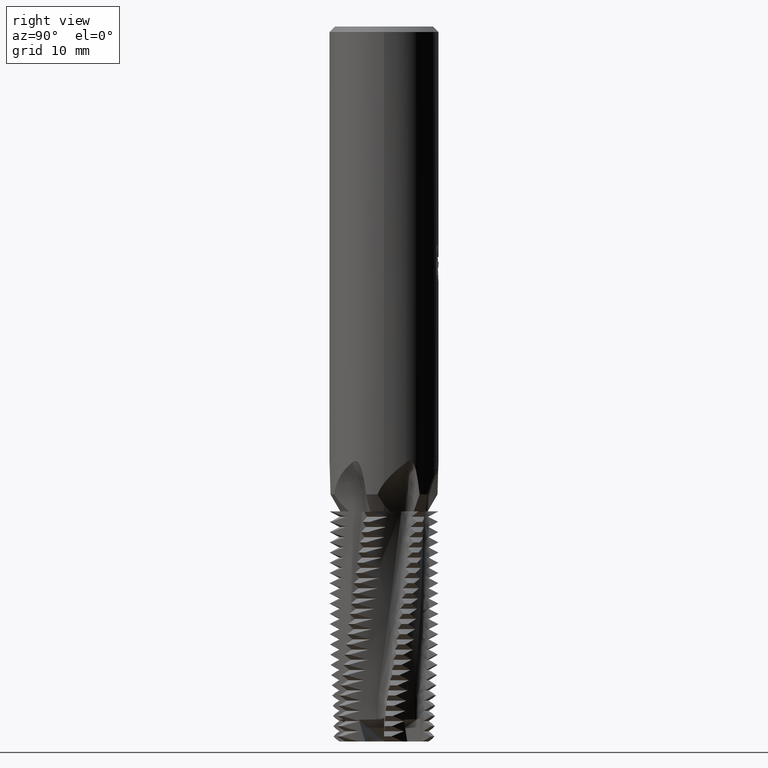
[diagram: clean part render]
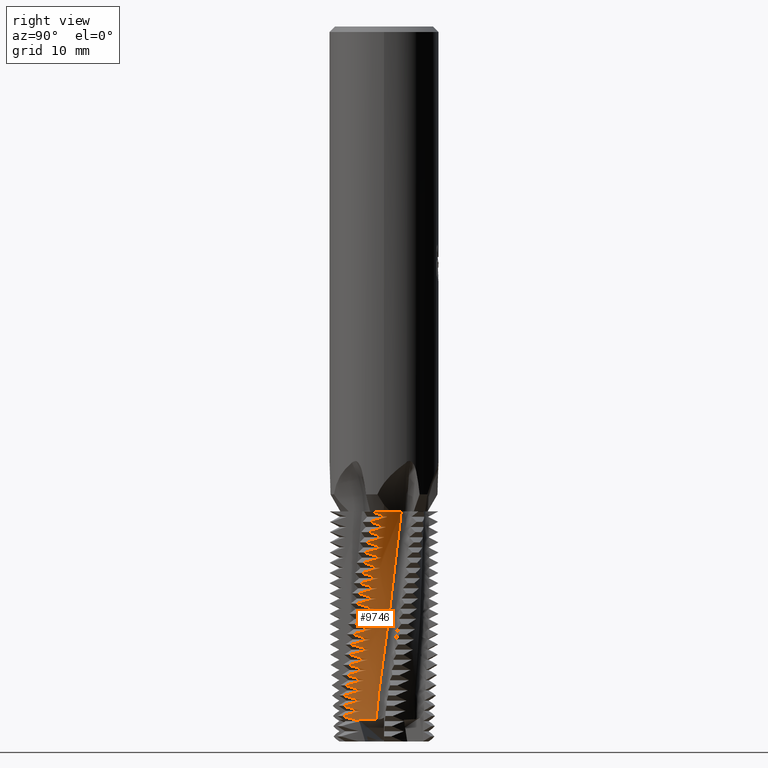
[diagram: same view with one face highlighted and labeled with its STEP entity id]
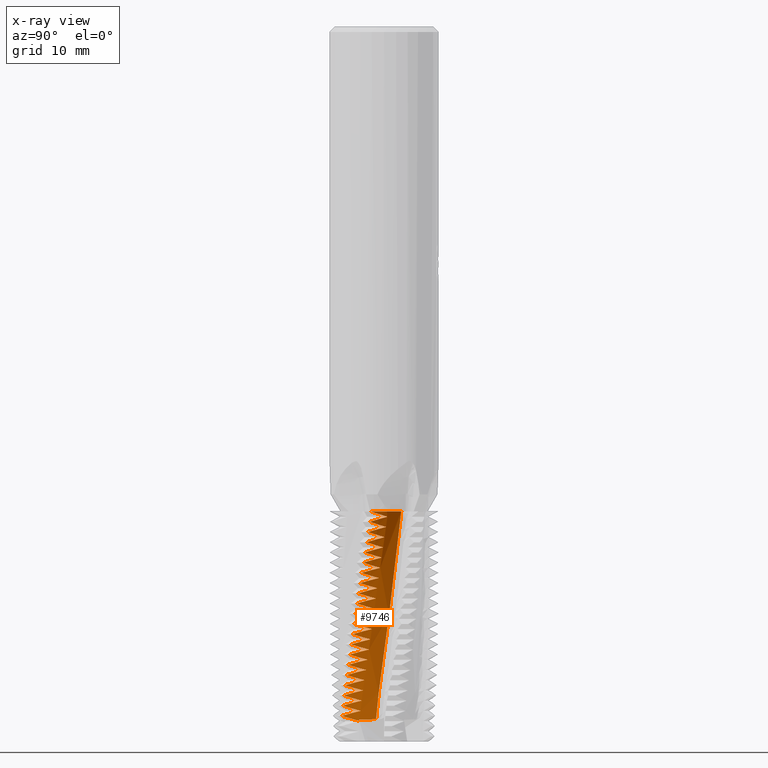
[diagram: x-ray of the same camera — body ghosted, the highlighted face saturated]
A machine part, right view. The second image highlights one B-rep face of the part: STEP entity #9746.
The next image is the same camera in x-ray: the body ghosted, the highlighted face saturated — about 0% of this face is hidden behind the body in this view.
In plain terms, the highlighted face is a freeform B-spline surface patch.
Its self-contained STEP definition (entity closure, byte-faithful):
#3534=EDGE_CURVE('',#5872,#10356,#10535,.T.);
#3674=EDGE_CURVE('',#8068,#5136,#10690,.T.);
#3710=VERTEX_POINT('',#10728);
#3774=EDGE_CURVE('',#4008,#7316,#10799,.T.);
#3800=VERTEX_POINT('',#10829);
#3906=EDGE_CURVE('',#4088,#4254,#10944,.T.);
#4008=VERTEX_POINT('',#11051);
#4016=VERTEX_POINT('',#11059);
#4038=VERTEX_POINT('',#11081);
#4042=VERTEX_POINT('',#11085);
#4056=VERTEX_POINT('',#11100);
#4066=EDGE_CURVE('',#8182,#4016,#11110,.T.);
#4088=VERTEX_POINT('',#11135);
#4132=EDGE_CURVE('',#7342,#7328,#11182,.T.);
#4192=VERTEX_POINT('',#11249);
#4254=VERTEX_POINT('',#11314);
#4400=EDGE_CURVE('',#5144,#7710,#11476,.T.);
#4564=VERTEX_POINT('',#11656);
#4574=EDGE_CURVE('',#9040,#3800,#11666,.T.);
#4618=EDGE_CURVE('',#5412,#4564,#11716,.T.);
#4736=EDGE_CURVE('',#4192,#5144,#11844,.T.);
#4908=VERTEX_POINT('',#12028);
#5010=EDGE_CURVE('',#6060,#8068,#12142,.T.);
#5132=VERTEX_POINT('',#12275);
#5136=VERTEX_POINT('',#12279);
#5144=VERTEX_POINT('',#12287);
#5228=VERTEX_POINT('',#12381);
#5300=EDGE_CURVE('',#3710,#7150,#12457,.T.);
#5354=EDGE_CURVE('',#4908,#8468,#12513,.T.);
#5412=VERTEX_POINT('',#12580);
#5416=EDGE_CURVE('',#5606,#5962,#12584,.T.);
#5480=VERTEX_POINT('',#12649);
#5518=VERTEX_POINT('',#12691);
#5606=VERTEX_POINT('',#12786);
#5642=EDGE_CURVE('',#9894,#7152,#12823,.T.);
#5872=VERTEX_POINT('',#13069);
#5918=EDGE_CURVE('',#6716,#5480,#13117,.T.);
#5962=VERTEX_POINT('',#13168);
#5964=VERTEX_POINT('',#13170);
#6060=VERTEX_POINT('',#13272);
#6096=EDGE_CURVE('',#9208,#7342,#13310,.T.);
#6116=EDGE_CURVE('',#5136,#5412,#13330,.T.);
#6126=EDGE_CURVE('',#7328,#5132,#13340,.T.);
#6128=EDGE_CURVE('',#7150,#5518,#13342,.T.);
#6188=VERTEX_POINT('',#13406);
#6444=EDGE_CURVE('',#4042,#7210,#13684,.T.);
#6468=EDGE_CURVE('',#4038,#6786,#13709,.T.);
#6696=VERTEX_POINT('',#13956);
#6716=VERTEX_POINT('',#13976);
#6756=EDGE_CURVE('',#9616,#4056,#14018,.T.);
#6786=VERTEX_POINT('',#14048);
#6860=EDGE_CURVE('',#3800,#9208,#14128,.T.);
#7150=VERTEX_POINT('',#14440);
#7152=VERTEX_POINT('',#14442);
#7210=VERTEX_POINT('',#14507);
#7260=EDGE_CURVE('',#6188,#9616,#14562,.T.);
#7316=VERTEX_POINT('',#14623);
#7328=VERTEX_POINT('',#14635);
#7342=VERTEX_POINT('',#14652);
#7548=VERTEX_POINT('',#14882);
#7710=VERTEX_POINT('',#15058);
#7714=EDGE_CURVE('',#5962,#9894,#15062,.T.);
#7884=EDGE_CURVE('',#8468,#6060,#15246,.T.);
#7980=EDGE_CURVE('',#6696,#4038,#15350,.T.);
#8068=VERTEX_POINT('',#15447);
#8124=EDGE_CURVE('',#7210,#6188,#15507,.T.);
#8182=VERTEX_POINT('',#15571);
#8316=EDGE_CURVE('',#5964,#4192,#15720,.T.);
#8468=VERTEX_POINT('',#15885);
#8716=EDGE_CURVE('',#7152,#8182,#16155,.T.);
#8750=EDGE_CURVE('',#4056,#4908,#16191,.T.);
#8788=EDGE_CURVE('',#5518,#4042,#16231,.T.);
#8796=EDGE_CURVE('',#6786,#9074,#16239,.T.);
#8826=EDGE_CURVE('',#4564,#9040,#16271,.T.);
#8828=EDGE_CURVE('',#7316,#6696,#16273,.T.);
#8866=EDGE_CURVE('',#5228,#5964,#16313,.T.);
#9040=VERTEX_POINT('',#16506);
#9074=VERTEX_POINT('',#16543);
#9138=EDGE_CURVE('',#5480,#5228,#16613,.T.);
#9208=VERTEX_POINT('',#16693);
#9296=EDGE_CURVE('',#4254,#9682,#16789,.T.);
#9392=EDGE_CURVE('',#9682,#4008,#16894,.T.);
#9508=EDGE_CURVE('',#3710,#5872,#17020,.T.);
#9560=EDGE_CURVE('',#9074,#6716,#17075,.T.);
#9616=VERTEX_POINT('',#17138);
#9682=VERTEX_POINT('',#17213);
#9746=ADVANCED_FACE('',(#17281),#17282,.F.);
#9894=VERTEX_POINT('',#17442);
#9934=EDGE_CURVE('',#7548,#10356,#17486,.T.);
#9946=EDGE_CURVE('',#4016,#4088,#17499,.T.);
#10022=EDGE_CURVE('',#5132,#5606,#17584,.T.);
#10114=EDGE_CURVE('',#7710,#7548,#17687,.T.);
#10356=VERTEX_POINT('',#17947);
#10535=B_SPLINE_CURVE_WITH_KNOTS('',3,(#18152,#18153,#18154,#18155),.UNSPECIFIED.,.F.,.F.,(4,4),(0.0,5.84952639063961),.UNSPECIFIED.);
#10690=B_SPLINE_CURVE_WITH_KNOTS('',3,(#18812,#18813,#18814,#18815,#18816,#18817),.UNSPECIFIED.,.F.,.F.,(4,2,4),(-5.61948608228634,-2.84789399336241,-0.0),.UNSPECIFIED.);
#10728=CARTESIAN_POINT('',(7.78159654628699,-1.85654388379958,-71.2499999996928));
#10799=B_SPLINE_CURVE_WITH_KNOTS('',3,(#19342,#19343,#19344,#19345,#19346,#19347),.UNSPECIFIED.,.F.,.F.,(4,2,4),(-5.27704749302958,-2.63030225929207,-0.0),.UNSPECIFIED.);
#10829=CARTESIAN_POINT('',(7.05299975821246,-3.77560517144667,-83.25));
#10944=B_SPLINE_CURVE_WITH_KNOTS('',3,(#19960,#19961,#19962,#19963,#19964,#19965),.UNSPECIFIED.,.F.,.F.,(4,2,4),(-5.62560304157055,-2.85306415786461,-0.0),.UNSPECIFIED.);
#11051=CARTESIAN_POINT('',(6.01403009292047,-5.27555134952251,-93.7499999999997));
#11059=CARTESIAN_POINT('',(6.36781898531546,-4.84261100753059,-90.7499999999999));
#11081=CARTESIAN_POINT('',(5.90548343813525,-2.85468067830477,-96.0));
#11085=CARTESIAN_POINT('',(6.55271526931434,0.293017085629637,-73.5));
#11100=CARTESIAN_POINT('',(6.55808428167925,-0.124366263784888,-76.5));
#11110=B_SPLINE_CURVE_WITH_KNOTS('',3,(#20355,#20356,#20357,#20358,#20359,#20360),.UNSPECIFIED.,.F.,.F.,(4,2,4),(-5.61785217917354,-2.84832789257784,-0.0),.UNSPECIFIED.);
#11135=CARTESIAN_POINT('',(6.17952547169326,-2.19940932021996,-91.5));
#11182=B_SPLINE_CURVE_WITH_KNOTS('',3,(#20628,#20629,#20630,#20631,#20632,#20633),.UNSPECIFIED.,.F.,.F.,(4,2,4),(-5.30324812299088,-2.64132732141284,-0.0),.UNSPECIFIED.);
#11249=CARTESIAN_POINT('',(5.06491480472757,-6.19246623090118,-101.25));
#11314=CARTESIAN_POINT('',(6.19868784117941,-5.05729859189835,-92.2499999999995));
#11476=B_SPLINE_CURVE_WITH_KNOTS('',3,(#21593,#21594,#21595,#21596),.UNSPECIFIED.,.F.,.F.,(4,4),(-5.14316140575248,-0.0),.UNSPECIFIED.);
#11656=CARTESIAN_POINT('',(7.17159652067711,-3.545166194216,-81.75));
#11666=B_SPLINE_CURVE_WITH_KNOTS('',3,(#22140,#22141,#22142,#22143,#22144,#22145),.UNSPECIFIED.,.F.,.F.,(4,2,4),(-5.61461145037038,-2.84535065110203,-0.0),.UNSPECIFIED.);
#11716=B_SPLINE_CURVE_WITH_KNOTS('',3,(#22468,#22469,#22470,#22471,#22472,#22473),.UNSPECIFIED.,.F.,.F.,(4,2,4),(-5.61695205445458,-2.84675506709832,-0.0),.UNSPECIFIED.);
#11844=B_SPLINE_CURVE_WITH_KNOTS('',3,(#23199,#23200,#23201,#23202,#23203,#23204),.UNSPECIFIED.,.F.,.F.,(4,2,4),(-5.37535980910993,-2.6727734751696,-0.0),.UNSPECIFIED.);
#12028=CARTESIAN_POINT('',(7.48606470456067,-2.8211407691095,-77.2499999999999));
#12142=B_SPLINE_CURVE_WITH_KNOTS('',3,(#24531,#24532,#24533,#24534,#24535,#24536),.UNSPECIFIED.,.F.,.F.,(4,2,4),(-5.29626750706646,-2.63815799034791,-0.0),.UNSPECIFIED.);
#12275=CARTESIAN_POINT('',(6.79908847463921,-4.21573195471773,-86.25));
#12279=CARTESIAN_POINT('',(7.28414115185122,-3.30776173263851,-80.25));
#12287=CARTESIAN_POINT('',(5.51468985826279,-3.62980241862912,-101.977718601492));
#12381=CARTESIAN_POINT('',(5.20613502683306,-6.07422077985143,-99.7500000000006));
#12457=B_SPLINE_CURVE_WITH_KNOTS('',3,(#25733,#25734,#25735,#25736,#25737,#25738),.UNSPECIFIED.,.F.,.F.,(4,2,4),(-5.30683520117697,-2.64230729378122,-0.0),.UNSPECIFIED.);
#12513=B_SPLINE_CURVE_WITH_KNOTS('',3,(#25908,#25909,#25910,#25911,#25912,#25913),.UNSPECIFIED.,.F.,.F.,(4,2,4),(-5.29830236350147,-2.63894712528896,-0.0),.UNSPECIFIED.);
#12580=CARTESIAN_POINT('',(6.51416893129162,-0.767814787413742,-81.0));
#12584=B_SPLINE_CURVE_WITH_KNOTS('',3,(#26151,#26152,#26153,#26154,#26155,#26156),.UNSPECIFIED.,.F.,.F.,(4,2,4),(-5.60850588534897,-2.84167496213667,-0.0),.UNSPECIFIED.);
#12649=CARTESIAN_POINT('',(5.68888865307234,-3.26503940345611,-99.0));
#12691=CARTESIAN_POINT('',(7.72048475587828,-2.09621447715902,-72.75));
#12786=CARTESIAN_POINT('',(6.36268045078757,-1.59381112254307,-87.0));
#12823=B_SPLINE_CURVE_WITH_KNOTS('',3,(#26997,#26998,#26999,#27000,#27001,#27002),.UNSPECIFIED.,.F.,.F.,(4,2,4),(-5.61030863613462,-2.84373548891365,-0.0),.UNSPECIFIED.);
#13069=CARTESIAN_POINT('',(7.78349412871241,-1.84857219180088,-71.2));
#13117=B_SPLINE_CURVE_WITH_KNOTS('',3,(#28182,#28183,#28184,#28185,#28186,#28187),.UNSPECIFIED.,.F.,.F.,(4,2,4),(-5.30899181118011,-2.64685509677272,-0.0),.UNSPECIFIED.);
#13168=CARTESIAN_POINT('',(6.66440974709608,-4.42556693799606,-87.7500000000235));
#13170=CARTESIAN_POINT('',(5.5986060428108,-3.41753519229556,-100.5));
#13272=CARTESIAN_POINT('',(7.38977118692756,-3.06451983272077,-78.7499999999475));
#13310=B_SPLINE_CURVE_WITH_KNOTS('',3,(#28836,#28837,#28838,#28839,#28840,#28841),.UNSPECIFIED.,.F.,.F.,(4,2,4),(-5.61241595696507,-2.844031296609,-0.0),.UNSPECIFIED.);
#13330=B_SPLINE_CURVE_WITH_KNOTS('',3,(#28885,#28886,#28887,#28888,#28889,#28890),.UNSPECIFIED.,.F.,.F.,(4,2,4),(-5.29705058856522,-2.63898646141656,-0.0),.UNSPECIFIED.);
#13340=B_SPLINE_CURVE_WITH_KNOTS('',3,(#28925,#28926,#28927,#28928,#28929,#28930),.UNSPECIFIED.,.F.,.F.,(4,2,4),(-5.61037750573799,-2.84280411111093,-0.0),.UNSPECIFIED.);
#13342=B_SPLINE_CURVE_WITH_KNOTS('',3,(#28933,#28934,#28935,#28936,#28937,#28938),.UNSPECIFIED.,.F.,.F.,(4,2,4),(-5.60724618761019,-2.84136709371767,-0.0),.UNSPECIFIED.);
#13406=CARTESIAN_POINT('',(6.55870385713329,0.0856745446506779,-75.0));
#13684=B_SPLINE_CURVE_WITH_KNOTS('',3,(#30190,#30191,#30192,#30193,#30194,#30195),.UNSPECIFIED.,.F.,.F.,(4,2,4),(-5.60948994211881,-2.84273433803022,-0.0),.UNSPECIFIED.);
#13709=B_SPLINE_CURVE_WITH_KNOTS('',3,(#30247,#30248,#30249,#30250,#30251,#30252),.UNSPECIFIED.,.F.,.F.,(4,2,4),(-5.66544624311254,-2.87685789666679,-0.0),.UNSPECIFIED.);
#13956=CARTESIAN_POINT('',(5.8126465006306,-5.4966481294246,-95.25));
#13976=CARTESIAN_POINT('',(5.38347766139524,-5.91761508289089,-98.2500000000001));
#14018=B_SPLINE_CURVE_WITH_KNOTS('',3,(#31160,#31161,#31162,#31163,#31164,#31165),.UNSPECIFIED.,.F.,.F.,(4,2,4),(-5.30069671252445,-2.63988023627405,-0.0),.UNSPECIFIED.);
#14048=CARTESIAN_POINT('',(5.59350709123376,-5.71949984125595,-96.7499999974435));
#14128=B_SPLINE_CURVE_WITH_KNOTS('',3,(#31462,#31463,#31464,#31465,#31466,#31467),.UNSPECIFIED.,.F.,.F.,(4,2,4),(-5.30126699619818,-2.6405834900182,-0.0),.UNSPECIFIED.);
#14440=CARTESIAN_POINT('',(6.54035524855413,0.497684273296514,-72.0));
#14442=CARTESIAN_POINT('',(6.52260897372686,-4.63201599477539,-89.2500000000005));
#14507=CARTESIAN_POINT('',(7.65107332124143,-2.33689474152937,-74.25));
#14562=B_SPLINE_CURVE_WITH_KNOTS('',3,(#32888,#32889,#32890,#32891,#32892,#32893),.UNSPECIFIED.,.F.,.F.,(4,2,4),(-5.61188368255623,-2.84419458822894,-0.0),.UNSPECIFIED.);
#14623=CARTESIAN_POINT('',(6.00859726975296,-2.63072143395942,-94.5));
#14635=CARTESIAN_POINT('',(6.40969151662455,-1.39276382595456,-85.5));
#14652=CARTESIAN_POINT('',(6.92871876024351,-3.99910694298736,-84.75));
#14882=CARTESIAN_POINT('',(5.64737127033433,-1.16118817024268,-101.739488676859));
#15058=CARTESIAN_POINT('',(5.51503559103188,-3.67669039402125,-101.815892716927));
#15062=B_SPLINE_CURVE_WITH_KNOTS('',3,(#34496,#34497,#34498,#34499,#34500,#34501),.UNSPECIFIED.,.F.,.F.,(4,2,4),(-5.30680460086605,-2.64143394071663,-0.0),.UNSPECIFIED.);
#15246=B_SPLINE_CURVE_WITH_KNOTS('',3,(#35071,#35072,#35073,#35074,#35075,#35076),.UNSPECIFIED.,.F.,.F.,(4,2,4),(-5.61705255058171,-2.84735436463524,-0.0),.UNSPECIFIED.);
#15350=B_SPLINE_CURVE_WITH_KNOTS('',3,(#35312,#35313,#35314,#35315,#35316,#35317),.UNSPECIFIED.,.F.,.F.,(4,2,4),(-5.26902370925931,-2.62727811978164,-0.0),.UNSPECIFIED.);
#15447=CARTESIAN_POINT('',(6.53595255866233,-0.552503904141486,-79.5));
#15507=B_SPLINE_CURVE_WITH_KNOTS('',3,(#35847,#35848,#35849,#35850,#35851,#35852),.UNSPECIFIED.,.F.,.F.,(4,2,4),(-5.30292478213152,-2.64075479455387,-0.0),.UNSPECIFIED.);
#15571=CARTESIAN_POINT('',(6.24931257139595,-1.99249311119732,-90.0));
#15720=B_SPLINE_CURVE_WITH_KNOTS('',3,(#36537,#36538,#36539,#36540,#36541,#36542),.UNSPECIFIED.,.F.,.F.,(4,2,4),(-5.56306504511426,-2.81067559896437,-0.0),.UNSPECIFIED.);
#15885=CARTESIAN_POINT('',(6.55059523392565,-0.337103091719432,-78.0));
#16155=B_SPLINE_CURVE_WITH_KNOTS('',3,(#37907,#37908,#37909,#37910,#37911,#37912),.UNSPECIFIED.,.F.,.F.,(4,2,4),(-5.29931763818393,-2.63884773753027,-0.0),.UNSPECIFIED.);
#16191=B_SPLINE_CURVE_WITH_KNOTS('',3,(#38063,#38064,#38065,#38066,#38067,#38068),.UNSPECIFIED.,.F.,.F.,(4,2,4),(-5.61441071364534,-2.84573818350245,-0.0),.UNSPECIFIED.);
#16231=B_SPLINE_CURVE_WITH_KNOTS('',3,(#38237,#38238,#38239,#38240,#38241,#38242),.UNSPECIFIED.,.F.,.F.,(4,2,4),(-5.30497434147747,-2.64156535154724,-0.0),.UNSPECIFIED.);
#16239=B_SPLINE_CURVE_WITH_KNOTS('',3,(#38265,#38266,#38267,#38268,#38269,#38270),.UNSPECIFIED.,.F.,.F.,(4,2,4),(-5.27796931618831,-2.63493817027634,-0.0),.UNSPECIFIED.);
#16271=B_SPLINE_CURVE_WITH_KNOTS('',3,(#38398,#38399,#38400,#38401,#38402,#38403),.UNSPECIFIED.,.F.,.F.,(4,2,4),(-5.29919659605634,-2.6398015560549,-0.0),.UNSPECIFIED.);
#16273=B_SPLINE_CURVE_WITH_KNOTS('',3,(#38406,#38407,#38408,#38409,#38410,#38411),.UNSPECIFIED.,.F.,.F.,(4,2,4),(-5.64159973949423,-2.8628773522847,-0.0),.UNSPECIFIED.);
#16313=B_SPLINE_CURVE_WITH_KNOTS('',3,(#38575,#38576,#38577,#38578,#38579,#38580),.UNSPECIFIED.,.F.,.F.,(4,2,4),(-5.34181252018965,-2.6596299999413,-0.0),.UNSPECIFIED.);
#16506=CARTESIAN_POINT('',(6.48568613198787,-0.97969985736267,-82.5));
#16543=CARTESIAN_POINT('',(5.79299529611567,-3.07654707624603,-97.5));
#16613=B_SPLINE_CURVE_WITH_KNOTS('',3,(#39610,#39611,#39612,#39613,#39614,#39615),.UNSPECIFIED.,.F.,.F.,(4,2,4),(-5.59463924490874,-2.82999400911539,-0.0),.UNSPECIFIED.);
#16693=CARTESIAN_POINT('',(6.4507744516577,-1.18804267053694,-84.0));
#16789=B_SPLINE_CURVE_WITH_KNOTS('',3,(#40342,#40343,#40344,#40345,#40346,#40347),.UNSPECIFIED.,.F.,.F.,(4,2,4),(-5.28481161291936,-2.63325789004465,-0.0),.UNSPECIFIED.);
#16894=B_SPLINE_CURVE_WITH_KNOTS('',3,(#40697,#40698,#40699,#40700,#40701,#40702),.UNSPECIFIED.,.F.,.F.,(4,2,4),(-5.63354068564321,-2.85792670136701,-0.0),.UNSPECIFIED.);
#17020=B_SPLINE_CURVE_WITH_KNOTS('',3,(#41060,#41061,#41062,#41063,#41064,#41065,#41066,#41067,#41068,#41069,#41070,#41071,#41072,#41073,#41074,#41075,#41076,#41077),.UNSPECIFIED.,.F.,.F.,(4,2,2,2,2,2,2,2,4),(0.0,4.2798831973062,7.59079704039042,9.30267594768724,14.1018099922006,16.3917593590355,22.0423815114549,25.6513206040202,28.8942214101256),.UNSPECIFIED.);
#17075=B_SPLINE_CURVE_WITH_KNOTS('',3,(#41295,#41296,#41297,#41298,#41299,#41300),.UNSPECIFIED.,.F.,.F.,(4,2,4),(-5.6284269070532,-2.85046168358722,-0.0),.UNSPECIFIED.);
#17138=CARTESIAN_POINT('',(7.57304625323706,-2.5785597646422,-75.7499999975008));
#17213=CARTESIAN_POINT('',(6.09960777651561,-2.41220260049743,-93.0));
#17281=FACE_OUTER_BOUND('',#42170,.T.);
#17282=B_SPLINE_SURFACE_WITH_KNOTS('',3,3,((#42171,#42172,#42173,#42174,#42175,#42176,#42177,#42178,#42179,#42180,#42181,#42182),(#42183,#42184,#42185,#42186,#42187,#42188,#42189,#42190,#42191,#42192,#42193,#42194),(#42195,#42196,#42197,#42198,#42199,#42200,#42201,#42202,#42203,#42204,#42205,#42206),(#42207,#42208,#42209,#42210,#42211,#42212,#42213,#42214,#42215,#42216,#42217,#42218),(#42219,#42220,#42221,#42222,#42223,#42224,#42225,#42226,#42227,#42228,#42229,#42230)),.UNSPECIFIED.,.F.,.F.,.F.,(4,1,4),(4,1,2,1,2,2,4),(1.2067197059184E-017,0.174488720353414,0.348977440706829),(0.0,4.26563632946831,8.53127265893663,12.7969089884049,17.0625453178733,25.5938179768099,34.1250906357465),.UNSPECIFIED.);
#17442=CARTESIAN_POINT('',(6.3098713102307,-1.79149670987803,-88.5));
#17486=B_SPLINE_CURVE_WITH_KNOTS('',3,(#42776,#42777,#42778,#42779,#42780,#42781,#42782,#42783,#42784,#42785,#42786,#42787),.UNSPECIFIED.,.F.,.F.,(4,1,2,1,2,2,4),(0.0,4.26563632946831,8.53127265893663,12.7969089884049,17.0625453178733,25.5938179768099,34.1250906357465),.UNSPECIFIED.);
#17499=B_SPLINE_CURVE_WITH_KNOTS('',3,(#42803,#42804,#42805,#42806,#42807,#42808),.UNSPECIFIED.,.F.,.F.,(4,2,4),(-5.29224975740849,-2.63611369960134,-0.0),.UNSPECIFIED.);
#17584=B_SPLINE_CURVE_WITH_KNOTS('',3,(#43202,#43203,#43204,#43205,#43206,#43207),.UNSPECIFIED.,.F.,.F.,(4,2,4),(-5.30512788778155,-2.64202871567936,-0.0),.UNSPECIFIED.);
#17687=B_SPLINE_CURVE_WITH_KNOTS('',3,(#43573,#43574,#43575,#43576),.UNSPECIFIED.,.F.,.F.,(4,4),(-4.13881996194998,-0.0),.UNSPECIFIED.);
#17947=CARTESIAN_POINT('',(5.18117762216553,2.53432594578458,-71.2));
#18152=CARTESIAN_POINT('',(8.05,-2.52129602057349,-71.2));
#18153=CARTESIAN_POINT('',(7.36763389184741,-0.694752610960941,-71.2));
#18154=CARTESIAN_POINT('',(6.39926107567012,1.01177651056337,-71.2));
#18155=CARTESIAN_POINT('',(5.18117762216554,2.53432594578456,-71.2));
#18812=CARTESIAN_POINT('',(5.52902763676944,1.63551356542936,-79.0869762529438));
#18813=CARTESIAN_POINT('',(5.97209528882039,0.833472144255569,-79.1897185336519));
#18814=CARTESIAN_POINT('',(6.34374289744231,0.00551185076619776,-79.3612097163068));
#18815=CARTESIAN_POINT('',(6.94550824419921,-1.7130306267286,-79.7845258679109));
#18816=CARTESIAN_POINT('',(7.17107809469258,-2.60334600094228,-80.0377741154513));
#18817=CARTESIAN_POINT('',(7.31685568679483,-3.50159480681092,-80.3080788786349));
#19342=CARTESIAN_POINT('',(6.00382578694489,-5.45525281698631,-93.6916591621101));
#19343=CARTESIAN_POINT('',(6.05434063498195,-4.62053526225124,-93.9644098173608));
#19344=CARTESIAN_POINT('',(6.06224781506668,-3.76782472823776,-94.2194168782498));
#19345=CARTESIAN_POINT('',(5.98473383917194,-2.06956373888757,-94.6409593639347));
#19346=CARTESIAN_POINT('',(5.89977445643431,-1.21050408379875,-94.8106705740025));
#19347=CARTESIAN_POINT('',(5.75924600703932,-0.350895869056905,-94.9109032055087));
#19960=CARTESIAN_POINT('',(5.76195219636021,0.175252105825474,-91.0863331409869));
#19961=CARTESIAN_POINT('',(5.98679254836959,-0.713668159643031,-91.1892555209926));
#19962=CARTESIAN_POINT('',(6.13577771659719,-1.60997116519234,-91.3610646011977));
#19963=CARTESIAN_POINT('',(6.27990024196448,-3.4265933133116,-91.7845965640161));
#19964=CARTESIAN_POINT('',(6.27052870272346,-4.34663542493282,-92.0380299856928));
#19965=CARTESIAN_POINT('',(6.18043544773295,-5.25400279253511,-92.3082323953031));
#20355=CARTESIAN_POINT('',(5.7525994751367,0.365458806036509,-89.5861143469587));
#20356=CARTESIAN_POINT('',(6.00652588502725,-0.514610268467108,-89.6889876726578));
#20357=CARTESIAN_POINT('',(6.18531466726624,-1.40452296589533,-89.8607762988268));
#20358=CARTESIAN_POINT('',(6.39125770619668,-3.21248304968148,-90.2843195275027));
#20359=CARTESIAN_POINT('',(6.4140594725188,-4.13072238558271,-90.5378093532052));
#20360=CARTESIAN_POINT('',(6.35666033101813,-5.03905703578184,-90.8081328836194));
#20628=CARTESIAN_POINT('',(6.95296795987429,-4.17770089244218,-84.6919402180555));
#20629=CARTESIAN_POINT('',(6.8428986084716,-3.34281233738838,-84.9648958053115));
#20630=CARTESIAN_POINT('',(6.68542392160513,-2.50001326021894,-85.2198165082177));
#20631=CARTESIAN_POINT('',(6.27492721617387,-0.840495409703461,-85.6420217139358));
#20632=CARTESIAN_POINT('',(6.02018161747748,-0.0119412483832101,-85.8122353091627));
#20633=CARTESIAN_POINT('',(5.7092422551514,0.805574096003232,-85.9130532918414));
#21593=CARTESIAN_POINT('',(5.53101652268534,-2.7646369366159,-105.003018357393));
#21594=CARTESIAN_POINT('',(5.51739857741211,-3.1821161525822,-103.53324095797));
#21595=CARTESIAN_POINT('',(5.50205218864104,-3.71053921238186,-101.676149057978));
#21596=CARTESIAN_POINT('',(5.53328866454405,-4.20034433943892,-100.03351748955));
#22140=CARTESIAN_POINT('',(5.62538942215674,1.26798318180751,-82.0873254652164));
#22141=CARTESIAN_POINT('',(6.01443670414871,0.438814048796261,-82.189982336015));
#22142=CARTESIAN_POINT('',(6.3307180301392,-0.411714165968051,-82.3614583909564));
#22143=CARTESIAN_POINT('',(6.81838555156588,-2.16389268554294,-82.7845270600764));
#22144=CARTESIAN_POINT('',(6.98557976011035,-3.0660405208175,-83.0377350356602));
#22145=CARTESIAN_POINT('',(7.07313719447269,-3.97092001174661,-83.3080767023999));
#22468=CARTESIAN_POINT('',(5.58066674489656,1.45141879932291,-80.5872203098981));
#22469=CARTESIAN_POINT('',(5.99679611118208,0.63518039275941,-80.6899173931912));
#22470=CARTESIAN_POINT('',(6.34076884513741,-0.204827097705169,-80.8614268052148));
#22471=CARTESIAN_POINT('',(6.8852339091449,-1.94103183231868,-81.2845426710039));
#22472=CARTESIAN_POINT('',(7.08148935518352,-2.83777436088182,-81.537755885653));
#22473=CARTESIAN_POINT('',(7.19798995059651,-3.73988039468144,-81.8080859817098));
#23199=CARTESIAN_POINT('',(5.02084036646797,-6.3724219921729,-101.191309675402));
#23200=CARTESIAN_POINT('',(5.22847841246527,-5.54023240679404,-101.464694362688));
#23201=CARTESIAN_POINT('',(5.38855185251318,-4.6848502650448,-101.719257368452));
#23202=CARTESIAN_POINT('',(5.59609418335197,-2.96114193949902,-102.142699341797));
#23203=CARTESIAN_POINT('',(5.64584774676114,-2.08583285487982,-102.313720780748));
#23204=CARTESIAN_POINT('',(5.63438323740129,-1.20082554156593,-102.415588687168));
#24531=CARTESIAN_POINT('',(7.43718435054521,-3.23804502161404,-78.6919498949269));
#24532=CARTESIAN_POINT('',(7.21876248218535,-2.42642003203466,-78.9648610959137));
#24533=CARTESIAN_POINT('',(6.95269684366328,-1.61269392189615,-79.2198774837167));
#24534=CARTESIAN_POINT('',(6.33079364941993,-0.0233566732697618,-79.6419980078802));
#24535=CARTESIAN_POINT('',(5.97144542341789,0.764468883399913,-79.8121653034478));
#24536=CARTESIAN_POINT('',(5.55828603988091,1.53419359589924,-79.9128773786948));
#25733=CARTESIAN_POINT('',(7.85578683317979,-2.0214531931952,-71.1918532094486));
#25734=CARTESIAN_POINT('',(7.51290075263947,-1.25118704744373,-71.4646410399177));
#25735=CARTESIAN_POINT('',(7.12165452096379,-0.487291153495896,-71.7194886759436));
#25736=CARTESIAN_POINT('',(6.25451404820311,0.987395435776081,-72.1415272693503));
#25737=CARTESIAN_POINT('',(5.77362002999878,1.7091217555639,-72.311693078468));
#25738=CARTESIAN_POINT('',(5.24197912913438,2.40407621725525,-72.4124425328916));
#25908=CARTESIAN_POINT('',(7.5390530685443,-2.99309792072673,-77.1919720452039));
#25909=CARTESIAN_POINT('',(7.29446448615733,-2.18834496427132,-77.4648942237642));
#25910=CARTESIAN_POINT('',(7.00193759882635,-1.38323683429349,-77.7199188849076));
#25911=CARTESIAN_POINT('',(6.32791397130414,0.185721429895343,-78.1421276832562));
#25912=CARTESIAN_POINT('',(5.94260935206262,0.961415520264502,-78.312342445787));
#25913=CARTESIAN_POINT('',(5.50401657145342,1.7172358133666,-78.4131119550995));
#26151=CARTESIAN_POINT('',(5.71972668135021,0.725063358194422,-86.5867929225059));
#26152=CARTESIAN_POINT('',(6.02779056570048,-0.136660419926274,-86.6894740516863));
#26153=CARTESIAN_POINT('',(6.26174103802719,-1.0126665347453,-86.861008884312));
#26154=CARTESIAN_POINT('',(6.58155301232881,-2.80092231910784,-87.2842189756283));
#26155=CARTESIAN_POINT('',(6.66333680449108,-3.71355123404859,-87.5375385382373));
#26156=CARTESIAN_POINT('',(6.66625822450643,-4.62133225625135,-87.808020067641));
#26997=CARTESIAN_POINT('',(5.73867828595618,0.546947365753593,-88.086368064751));
#26998=CARTESIAN_POINT('',(6.01995169554283,-0.32381442990547,-88.1891215118845));
#26999=CARTESIAN_POINT('',(6.2268451924417,-1.20671316607656,-88.360807676934));
#27000=CARTESIAN_POINT('',(6.49120504016719,-3.00446695917378,-88.7842093557814));
#27001=CARTESIAN_POINT('',(6.54448924803968,-3.91993924459257,-89.0376816261759));
#27002=CARTESIAN_POINT('',(6.51816022918851,-4.82809146545199,-89.3080575927148));
#28182=CARTESIAN_POINT('',(5.35191281223882,-6.09604946337046,-98.1916886032393));
#28183=CARTESIAN_POINT('',(5.50174797647331,-5.26702264063689,-98.4645419644363));
#28184=CARTESIAN_POINT('',(5.61082243030793,-4.41665780044421,-98.7183430370187));
#28185=CARTESIAN_POINT('',(5.72957758621924,-2.70781731544021,-99.138962801309));
#28186=CARTESIAN_POINT('',(5.74083633891571,-1.83984464494672,-99.3080649977511));
#28187=CARTESIAN_POINT('',(5.69413621225051,-0.964497835189499,-99.4081346682965));
#28836=CARTESIAN_POINT('',(5.66331466847592,1.08568312988663,-83.5872827378905));
#28837=CARTESIAN_POINT('',(6.02530645261397,0.244648041395083,-83.6899235406365));
#28838=CARTESIAN_POINT('',(6.3140060429063,-0.615360920215197,-83.8613929738209));
#28839=CARTESIAN_POINT('',(6.74527761438407,-2.38148439729607,-84.284462355563));
#28840=CARTESIAN_POINT('',(6.88369940545596,-3.28805363091121,-84.5376868467768));
#28841=CARTESIAN_POINT('',(6.94267637573699,-4.19477566192709,-84.8080581747919));
#28885=CARTESIAN_POINT('',(7.32579873037035,-3.48283953284314,-80.1919225679871));
#28886=CARTESIAN_POINT('',(7.13433403022037,-2.6643091661861,-80.4648910330238));
#28887=CARTESIAN_POINT('',(6.89561917180719,-1.84208924617919,-80.7198167291104));
#28888=CARTESIAN_POINT('',(6.32682778897476,-0.232262561876798,-81.1418981168874));
#28889=CARTESIAN_POINT('',(5.99376841051642,0.567149863290277,-81.3119969808045));
#28890=CARTESIAN_POINT('',(5.60613174414225,1.3503494655335,-81.4127030023034));
#28925=CARTESIAN_POINT('',(5.69468178625048,0.904670647731593,-85.0871016733927));
#28926=CARTESIAN_POINT('',(6.02967207071506,0.0527965412862902,-85.1897506355736));
#28927=CARTESIAN_POINT('',(6.2909224508949,-0.815692300145524,-85.3612398677318));
#28928=CARTESIAN_POINT('',(6.66623449593262,-2.59381493179081,-85.7843568894679));
#28929=CARTESIAN_POINT('',(6.77618417654364,-3.50386439978082,-86.0376188980959));
#28930=CARTESIAN_POINT('',(6.80694897064445,-4.41154046632177,-86.3080371718874));
#28933=CARTESIAN_POINT('',(5.20089605402477,2.49295862903087,-71.587838854219));
#28934=CARTESIAN_POINT('',(5.76462472244079,1.77240756247838,-71.6903355861191));
#28935=CARTESIAN_POINT('',(6.26268632124468,1.01496196749537,-71.8617015314454));
#28936=CARTESIAN_POINT('',(7.12982904885592,-0.580893989872172,-72.2845794797096));
#28937=CARTESIAN_POINT('',(7.49521863967739,-1.42114038031487,-72.5377828560162));
#28938=CARTESIAN_POINT('',(7.78402965091913,-2.2817060392571,-72.808071072386));
#30190=CARTESIAN_POINT('',(5.27474000324493,2.33037404011628,-73.0873587656819));
#30191=CARTESIAN_POINT('',(5.81614427084699,1.59257663893433,-73.1899470536911));
#30192=CARTESIAN_POINT('',(6.29067057359031,0.819868404513202,-73.3614085281633));
#30193=CARTESIAN_POINT('',(7.10804805026017,-0.802857604143706,-73.7844463074733));
#30194=CARTESIAN_POINT('',(7.44708790321543,-1.65454384011045,-74.0377112714177));
#30195=CARTESIAN_POINT('',(7.70871505282518,-2.52424598242317,-74.3080327427584));
#30247=CARTESIAN_POINT('',(5.75388153507121,-0.450658684721751,-95.5899178485407));
#30248=CARTESIAN_POINT('',(5.88014299811207,-1.36186808940534,-95.6924832544194));
#30249=CARTESIAN_POINT('',(5.92881469683404,-2.27201609510796,-95.8637893272448));
#30250=CARTESIAN_POINT('',(5.86589183910699,-4.10252511587864,-96.2864108792436));
#30251=CARTESIAN_POINT('',(5.74961212642187,-5.01640858719707,-96.5378720375173));
#30252=CARTESIAN_POINT('',(5.55182478649651,-5.91488823075098,-96.8084356143907));
#31160=CARTESIAN_POINT('',(7.63148419464287,-2.74885064021481,-75.6919792804249));
#31161=CARTESIAN_POINT('',(7.36138090751299,-1.95170049373248,-75.9648932598082));
#31162=CARTESIAN_POINT('',(7.04312231965802,-1.1559181696267,-76.2199035428167));
#31163=CARTESIAN_POINT('',(6.3185592416718,0.391294985479012,-76.6421392336477));
#31164=CARTESIAN_POINT('',(5.90812653710554,1.15435299341704,-76.8123840425137));
#31165=CARTESIAN_POINT('',(5.44496466612176,1.89573669556387,-76.9131859654402));
#31462=CARTESIAN_POINT('',(7.08301038753239,-3.95328658673918,-83.1919221592716));
#31463=CARTESIAN_POINT('',(6.9460408042119,-3.12286579602879,-83.4648653496522));
#31464=CARTESIAN_POINT('',(6.76166989047587,-2.28593358979257,-83.7197673245576));
#31465=CARTESIAN_POINT('',(6.29865331496616,-0.641007159101347,-84.1418895287989));
#31466=CARTESIAN_POINT('',(6.01787507512194,0.178818719471645,-84.3120410267643));
#31467=CARTESIAN_POINT('',(5.68137537740835,0.985886152691136,-84.4128004613009));
#32888=CARTESIAN_POINT('',(5.34467307159995,2.16346511768898,-74.5870241181005));
#32889=CARTESIAN_POINT('',(5.8628877592537,1.40885599705406,-74.6896865669385));
#32890=CARTESIAN_POINT('',(6.31304910161557,0.621387616739465,-74.8612222150835));
#32891=CARTESIAN_POINT('',(7.07905054423839,-1.02708729126562,-75.2843794607035));
#32892=CARTESIAN_POINT('',(7.39095823089807,-1.88957801855892,-75.5376854580798));
#32893=CARTESIAN_POINT('',(7.62466184289385,-2.76771725501394,-75.8080205965767));
#34496=CARTESIAN_POINT('',(6.67731925243042,-4.60543883622501,-87.691949489105));
#34497=CARTESIAN_POINT('',(6.62028434941127,-3.7647843302881,-87.9648543237165));
#34498=CARTESIAN_POINT('',(6.5160026249775,-2.91309933436545,-88.2198800290393));
#34499=CARTESIAN_POINT('',(6.2094596777713,-1.2303735611571,-88.6424240395673));
#34500=CARTESIAN_POINT('',(6.00649624988781,-0.387391601805426,-88.8128726547238));
#34501=CARTESIAN_POINT('',(5.74687987508534,0.447861991792251,-88.9138293087993));
#35071=CARTESIAN_POINT('',(5.4720514308691,1.81614641184346,-77.5868265313555));
#35072=CARTESIAN_POINT('',(5.94115033139398,1.02933988744121,-77.6895733770662));
#35073=CARTESIAN_POINT('',(6.33996549539637,0.213996403648973,-77.8611815926286));
#35074=CARTESIAN_POINT('',(6.998145855339,-1.48229723112806,-78.2844368119247));
#35075=CARTESIAN_POINT('',(7.25333894601227,-2.36431084820318,-78.5377550061382));
#35076=CARTESIAN_POINT('',(7.42889484764154,-3.25702846366425,-78.8080522371523));
#35312=CARTESIAN_POINT('',(5.7959522884136,-5.67584950346709,-95.1915749970635));
#35313=CARTESIAN_POINT('',(5.8763802865624,-4.8453707662717,-95.4641407017908));
#35314=CARTESIAN_POINT('',(5.91588352096487,-3.99502686359197,-95.7189486280123));
#35315=CARTESIAN_POINT('',(5.90303600937185,-2.29772052135168,-96.1398594422593));
#35316=CARTESIAN_POINT('',(5.8516058569511,-1.43705562752439,-96.3091366638811));
#35317=CARTESIAN_POINT('',(5.74509372817295,-0.573548655943848,-96.4089632951409));
#35847=CARTESIAN_POINT('',(7.71485035595616,-2.50544424624386,-74.1919652889335));
#35848=CARTESIAN_POINT('',(7.41987072692368,-1.71659450560637,-74.4648531479396));
#35849=CARTESIAN_POINT('',(7.07659449961349,-0.930809522336033,-74.7198279423461));
#35850=CARTESIAN_POINT('',(6.30302596725955,0.593402143505306,-75.1420416871472));
#35851=CARTESIAN_POINT('',(5.86830080769636,1.34323117192563,-75.3122867824344));
#35852=CARTESIAN_POINT('',(5.38145767610966,2.06963630706539,-75.4130946242723));
#36537=CARTESIAN_POINT('',(5.68042812724204,-1.03179913581282,-100.090893034622));
#36538=CARTESIAN_POINT('',(5.71337497231851,-1.94195006383416,-100.192442990781));
#36539=CARTESIAN_POINT('',(5.67327982215212,-2.84290775569699,-100.362723766076));
#36540=CARTESIAN_POINT('',(5.45008426856989,-4.63085492964951,-100.784308329357));
#36541=CARTESIAN_POINT('',(5.26398309775188,-5.51753554313041,-101.036962416517));
#36542=CARTESIAN_POINT('',(5.01161271766227,-6.37811016706134,-101.30804704736));
#37907=CARTESIAN_POINT('',(6.53008340021391,-4.81200086525885,-89.1919275964426));
#37908=CARTESIAN_POINT('',(6.498448496589,-3.9711017838388,-89.4648671151919));
#37909=CARTESIAN_POINT('',(6.42002682125386,-3.11774050109301,-89.7200508751447));
#37910=CARTESIAN_POINT('',(6.1664707463675,-1.42891635263373,-90.1425204315829));
#37911=CARTESIAN_POINT('',(5.99067137163547,-0.580755603558061,-90.3129244330106));
#37912=CARTESIAN_POINT('',(5.758374550389,0.261611027341081,-90.4138243811145));
#38063=CARTESIAN_POINT('',(5.4105155982706,1.99209635344225,-76.0868442400999));
#38064=CARTESIAN_POINT('',(5.9046398336869,1.22113891071221,-76.1895604956106));
#38065=CARTESIAN_POINT('',(6.32957412799893,0.419445592844082,-76.3611459934872));
#38066=CARTESIAN_POINT('',(7.04252796981233,-1.25358160255076,-76.7843772937936));
#38067=CARTESIAN_POINT('',(7.3264942646019,-2.1261981438454,-77.0377016730705));
#38068=CARTESIAN_POINT('',(7.53151297580676,-3.01202725325117,-77.3080292237508));
#38237=CARTESIAN_POINT('',(7.78950686058633,-2.26296568069739,-72.6919247322011));
#38238=CARTESIAN_POINT('',(7.47027261240869,-1.48308528011727,-72.9647700019542));
#38239=CARTESIAN_POINT('',(7.10267417272772,-0.70793785833195,-73.2196899416324));
#38240=CARTESIAN_POINT('',(6.28159459368543,0.792080320493364,-73.6418366166722));
#38241=CARTESIAN_POINT('',(5.82339050458367,1.52812237240638,-73.8120545393167));
#38242=CARTESIAN_POINT('',(5.31372980443135,2.23904153199008,-73.9128440779098));
#38265=CARTESIAN_POINT('',(5.56992586821864,-5.89789070829662,-96.6915474529126));
#38266=CARTESIAN_POINT('',(5.68219099145497,-5.07044696428425,-96.9645829581425));
#38267=CARTESIAN_POINT('',(5.75685030045788,-4.22242018981856,-97.2186080313822));
#38268=CARTESIAN_POINT('',(5.81324662294644,-2.52141039289468,-97.6390167560079));
#38269=CARTESIAN_POINT('',(5.79604870220982,-1.65765105725923,-97.8077847693276));
#38270=CARTESIAN_POINT('',(5.72243262804442,-0.788128497903373,-97.9075065449172));
#38398=CARTESIAN_POINT('',(7.20741487453109,-3.72168504017476,-81.6919138894104));
#38399=CARTESIAN_POINT('',(7.04330495486884,-2.89670563861488,-81.9648612569344));
#38400=CARTESIAN_POINT('',(6.83184575316987,-2.06662198734128,-82.2197647228865));
#38401=CARTESIAN_POINT('',(6.31604791295126,-0.438238035478202,-82.6418452860576));
#38402=CARTESIAN_POINT('',(6.00915708520857,0.371884425713129,-82.8119583224604));
#38403=CARTESIAN_POINT('',(5.64708319098136,1.16752326114591,-82.9126803289837));
#38406=CARTESIAN_POINT('',(5.76357639174394,-0.232606725898998,-94.0882339901731));
#38407=CARTESIAN_POINT('',(5.92465811516492,-1.13727337040551,-94.1910103698042));
#38408=CARTESIAN_POINT('',(6.00863814722856,-2.04387786440309,-94.3625852251934));
#38409=CARTESIAN_POINT('',(6.01840916356635,-3.87184630019917,-94.7855925196606));
#38410=CARTESIAN_POINT('',(5.93944515617537,-4.791863640583,-95.0386743908722));
#38411=CARTESIAN_POINT('',(5.77901577631774,-5.69307136089532,-95.3084171210957));
#38575=CARTESIAN_POINT('',(5.16769265416671,-6.25337826129562,-99.6915282640666));
#38576=CARTESIAN_POINT('',(5.34937981406376,-5.42294383529408,-99.9645145828235));
#38577=CARTESIAN_POINT('',(5.48696772594134,-4.57026808606372,-100.218516472896));
#38578=CARTESIAN_POINT('',(5.65618791825396,-2.85411156311619,-100.640179282664));
#38579=CARTESIAN_POINT('',(5.68979674419191,-1.98239537751625,-100.810046124915));
#38580=CARTESIAN_POINT('',(5.66384947794268,-1.10198215971491,-100.910834949384));
#39610=CARTESIAN_POINT('',(5.70997272003788,-0.873489754456436,-98.5924660184109));
#39611=CARTESIAN_POINT('',(5.76784115241973,-1.78621579659116,-98.6940925253906));
#39612=CARTESIAN_POINT('',(5.75062098654378,-2.69155026871558,-98.8642688913247));
#39613=CARTESIAN_POINT('',(5.56644367844038,-4.49494207143325,-99.2853885227683));
#39614=CARTESIAN_POINT('',(5.39616330765771,-5.39127955170492,-99.537576277061));
#39615=CARTESIAN_POINT('',(5.15531838943116,-6.26234389343761,-99.8079734813869));
#40342=CARTESIAN_POINT('',(6.19466994139876,-5.23722169423331,-92.1917644252243));
#40343=CARTESIAN_POINT('',(6.21654918833469,-4.39943876214299,-92.464637859529));
#40344=CARTESIAN_POINT('',(6.19428554751777,-3.54552923056019,-92.7197720643822));
#40345=CARTESIAN_POINT('',(6.05513129607389,-1.84855424266309,-93.1417811218145));
#40346=CARTESIAN_POINT('',(5.93828525133376,-0.992218166562589,-93.3118217563714));
#40347=CARTESIAN_POINT('',(5.76547671536661,-0.137538178594596,-93.412365316891));
#40697=CARTESIAN_POINT('',(5.76592043444885,-0.0240169415830855,-92.5870378280989));
#40698=CARTESIAN_POINT('',(5.95984028657335,-0.921191123015668,-92.6899305922527));
#40699=CARTESIAN_POINT('',(6.07724396457359,-1.82311568746757,-92.8616708922675));
#40700=CARTESIAN_POINT('',(6.15600783494488,-3.64653309123088,-93.2850283757989));
#40701=CARTESIAN_POINT('',(6.11272269718805,-4.56723561084611,-93.5383274214896));
#40702=CARTESIAN_POINT('',(5.98828504985629,-5.47229756427147,-93.8083373435052));
#41060=CARTESIAN_POINT('',(4.88255035918618,-6.33724719338065,-105.001036981168));
#41061=CARTESIAN_POINT('',(4.90413226101131,-6.32061935493712,-103.574669418631));
#41062=CARTESIAN_POINT('',(4.9811274617053,-6.26226616774656,-102.153793954681));
#41063=CARTESIAN_POINT('',(5.2079024440991,-6.07406573073838,-99.6408991005427));
#41064=CARTESIAN_POINT('',(5.33635454685701,-5.96381859898788,-98.555339179214));
#41065=CARTESIAN_POINT('',(5.56737128905711,-5.74596286950404,-96.9115262207688));
#41066=CARTESIAN_POINT('',(5.62435362263813,-5.69118566923137,-96.5600450489666));
#41067=CARTESIAN_POINT('',(6.0264228374416,-5.27850179563435,-93.7827178623445));
#41068=CARTESIAN_POINT('',(6.27169506070569,-4.97921302296646,-91.7352405705121));
#41069=CARTESIAN_POINT('',(6.58002350188694,-4.55325627286002,-88.6877698890458));
#41070=CARTESIAN_POINT('',(6.6595076902127,-4.43545927505199,-87.813143677631));
#41071=CARTESIAN_POINT('',(6.93871283323359,-3.99878743333591,-84.6972426928089));
#41072=CARTESIAN_POINT('',(7.12118489928599,-3.66620744924126,-82.4828650408428));
#41073=CARTESIAN_POINT('',(7.38589532041711,-3.08394168317888,-78.8557523962132));
#41074=CARTESIAN_POINT('',(7.48163511765983,-2.84732575858875,-77.4150197667574));
#41075=CARTESIAN_POINT('',(7.65683376638336,-2.33221135468483,-74.2238589717644));
#41076=CARTESIAN_POINT('',(7.72630060642619,-2.08941078160221,-72.7106958030021));
#41077=CARTESIAN_POINT('',(7.78353338975665,-1.84840687364629,-71.198963018833));
#41295=CARTESIAN_POINT('',(5.73572442185598,-0.67586969514807,-97.0919505651534));
#41296=CARTESIAN_POINT('',(5.82543820972593,-1.59017406987822,-97.1940307646597));
#41297=CARTESIAN_POINT('',(5.83794231827655,-2.49954846500121,-97.3645528694261));
#41298=CARTESIAN_POINT('',(5.70661938357838,-4.31911277550406,-97.7860623760521));
#41299=CARTESIAN_POINT('',(5.55902039450794,-5.22626311737863,-98.0382044921131));
#41300=CARTESIAN_POINT('',(5.3363537724024,-6.10959288074462,-98.3082795332418));
#42170=EDGE_LOOP('',(#50848,#50849,#50850,#50851,#50852,#50853,#50854,#50855,#50856,#50857,#50858,#50859,#50860,#50861,#50862,#50863,#50864,#50865,#50866,#50867,#50868,#50869,#50870,#50871,#50872,#50873,#50874,#50875,#50876,#50877,#50878,#50879,#50880,#50881,#50882,#50883,#50884,#50885,#50886,#50887,#50888,#50889,#50890,#50891,#50892,#50893));
#42171=CARTESIAN_POINT('',(5.58870478173713,-1.28265609722128,-105.16));
#42172=CARTESIAN_POINT('',(5.60887572661156,-1.27289170827271,-103.738332493613));
#42173=CARTESIAN_POINT('',(5.66218997600423,-1.15292805541022,-100.894854044957));
#42174=CARTESIAN_POINT('',(5.72343066323679,-0.824146362150752,-98.0513120785462));
#42175=CARTESIAN_POINT('',(5.76110662213316,-0.39014017456535,-95.2080918995138));
#42176=CARTESIAN_POINT('',(5.7739004865469,0.0185805678231721,-92.3649312473218));
#42177=CARTESIAN_POINT('',(5.75392231612951,0.377206981399338,-89.5216694412));
#42178=CARTESIAN_POINT('',(5.70862433465414,0.881602130635359,-85.256571758111));
#42179=CARTESIAN_POINT('',(5.64684541265445,1.22663363812751,-82.4131689103884));
#42180=CARTESIAN_POINT('',(5.44585367551242,1.92609637724443,-76.7265408368293));
#42181=CARTESIAN_POINT('',(5.31920135486927,2.24989572232301,-73.8832541534597));
#42182=CARTESIAN_POINT('',(5.17296429662159,2.55132270446796,-71.0398906870728));
#42183=CARTESIAN_POINT('',(5.58865126989189,-2.35289300255938,-105.16));
#42184=CARTESIAN_POINT('',(5.60805391359338,-2.34312857889187,-103.73833276734));
#42185=CARTESIAN_POINT('',(5.68059215477668,-2.22347594312338,-100.894875478833));
#42186=CARTESIAN_POINT('',(5.80335977526648,-1.89219183231265,-98.0513637021765));
#42187=CARTESIAN_POINT('',(5.92303332043282,-1.44886077174091,-95.2081267465039));
#42188=CARTESIAN_POINT('',(6.01168888074735,-1.02674414258044,-92.3649407231806));
#42189=CARTESIAN_POINT('',(6.05597310874499,-0.649994601348531,-89.5216684143783));
#42190=CARTESIAN_POINT('',(6.09953984006689,-0.11663361420625,-85.2565850105311));
#42191=CARTESIAN_POINT('',(6.09760093256874,0.253589377079863,-82.4131925409644));
#42192=CARTESIAN_POINT('',(6.01569366179149,1.01764842288358,-76.7265589437479));
#42193=CARTESIAN_POINT('',(5.94233880655147,1.37758608166256,-73.8832656451497));
#42194=CARTESIAN_POINT('',(5.844223763592,1.71776540940111,-71.0399066446986));
#42195=CARTESIAN_POINT('',(5.40153718141067,-4.49335920596216,-105.16));
#42196=CARTESIAN_POINT('',(5.41940323786206,-4.48346044838275,-103.738333387789));
#42197=CARTESIAN_POINT('',(5.53033512728504,-4.36778896054157,-100.894924085014));
#42198=CARTESIAN_POINT('',(5.7765939956347,-4.04225086832688,-98.0514806776012));
#42199=CARTESIAN_POINT('',(6.06189219805288,-3.59459783180011,-95.208205777828));
#42200=CARTESIAN_POINT('',(6.30461200324948,-3.15894505383872,-92.3649621776167));
#42201=CARTESIAN_POINT('',(6.48058788400645,-2.75717805376918,-89.5216660945238));
#42202=CARTESIAN_POINT('',(6.70694545891208,-2.18141308708888,-85.2566150350105));
#42203=CARTESIAN_POINT('',(6.82908851464875,-1.77126312151959,-82.4132458487264));
#42204=CARTESIAN_POINT('',(6.99663758497075,-0.898819584503612,-76.7266002441842));
#42205=CARTESIAN_POINT('',(7.03619232393989,-0.475918059800385,-73.8832915461881));
#42206=CARTESIAN_POINT('',(7.04109276507727,-0.066642571413118,-71.039942816556));
#42207=CARTESIAN_POINT('',(4.84546783755377,-6.56878545973007,-105.16));
#42208=CARTESIAN_POINT('',(4.86184399822592,-6.55848752535208,-103.738334135682));
#42209=CARTESIAN_POINT('',(5.0098943724639,-6.45340561912469,-100.894982669323));
#42210=CARTESIAN_POINT('',(5.37676915540585,-6.15497669063849,-98.0516216842921));
#42211=CARTESIAN_POINT('',(5.825925013695,-5.73183641471166,-95.208301031609));
#42212=CARTESIAN_POINT('',(6.22271830626675,-5.30961428450788,-92.3649880668304));
#42213=CARTESIAN_POINT('',(6.53272944564417,-4.90608499320328,-89.5216632489803));
#42214=CARTESIAN_POINT('',(6.94646482972345,-4.32031149743583,-85.2566513241));
#42215=CARTESIAN_POINT('',(7.19773889851839,-3.89239460571381,-82.4133102615557));
#42216=CARTESIAN_POINT('',(7.62977865424113,-2.95654474674194,-76.7266498691574));
#42217=CARTESIAN_POINT('',(7.7914634508807,-2.49124897912473,-73.8833228496621));
#42218=CARTESIAN_POINT('',(7.90981539869201,-2.03182150320282,-71.0399864169873));
#42219=CARTESIAN_POINT('',(4.47956445860327,-7.57452983763471,-105.16));
#42220=CARTESIAN_POINT('',(4.49521861537912,-7.56396922283172,-103.738334535749));
#42221=CARTESIAN_POINT('',(4.66122855115322,-7.46575120206641,-100.895014001319));
#42222=CARTESIAN_POINT('',(5.08677913827874,-7.18600315374556,-98.0516971290025));
#42223=CARTESIAN_POINT('',(5.61618044850705,-6.78213008001508,-95.2083519724352));
#42224=CARTESIAN_POINT('',(6.08884458967318,-6.37325185974841,-92.3650019010852));
#42225=CARTESIAN_POINT('',(6.4654420544619,-5.97465889680156,-89.5216617710774));
#42226=CARTESIAN_POINT('',(6.972590413995,-5.39204232597932,-85.2566706480557));
#42227=CARTESIAN_POINT('',(7.28871112390754,-4.96090744343312,-82.4133447004083));
#42228=CARTESIAN_POINT('',(7.85474313201135,-4.00506099279404,-76.7266764338601));
#42229=CARTESIAN_POINT('',(8.07886823026645,-3.52402333539638,-73.8833395919671));
#42230=CARTESIAN_POINT('',(8.25569040961796,-3.04462825312468,-71.0400097406713));
#42776=CARTESIAN_POINT('',(5.58870478173713,-1.28265609722128,-105.16));
#42777=CARTESIAN_POINT('',(5.60887572661156,-1.27289170827271,-103.738332493613));
#42778=CARTESIAN_POINT('',(5.66218997600581,-1.15292805541296,-100.894854044957));
#42779=CARTESIAN_POINT('',(5.72343066323363,-0.824146362145282,-98.0513120785462));
#42780=CARTESIAN_POINT('',(5.76110662213632,-0.390140174570817,-95.2080918995138));
#42781=CARTESIAN_POINT('',(5.77390048654533,0.0185805678259059,-92.3649312473218));
#42782=CARTESIAN_POINT('',(5.75392231612951,0.377206981399339,-89.5216694412));
#42783=CARTESIAN_POINT('',(5.70862433465414,0.88160213063536,-85.256571758111));
#42784=CARTESIAN_POINT('',(5.64684541263258,1.22663363811488,-82.4131689103884));
#42785=CARTESIAN_POINT('',(5.44585367553429,1.92609637725706,-76.7265408368293));
#42786=CARTESIAN_POINT('',(5.31920135486927,2.24989572232301,-73.8832541534597));
#42787=CARTESIAN_POINT('',(5.17296429662159,2.55132270446797,-71.0398906870728));
#42803=CARTESIAN_POINT('',(6.36968810358674,-5.02259444716726,-90.6918621381994));
#42804=CARTESIAN_POINT('',(6.36419386069578,-4.18279085891383,-90.9647976689289));
#42805=CARTESIAN_POINT('',(6.31316558557452,-3.32870787268186,-91.2199896105063));
#42806=CARTESIAN_POINT('',(6.11535581350823,-1.63496753475841,-91.6423052553736));
#42807=CARTESIAN_POINT('',(5.96824362727084,-0.78231310374578,-91.8125750037339));
#42808=CARTESIAN_POINT('',(5.76486192730491,0.0665709791854263,-91.9133391497003));
#43202=CARTESIAN_POINT('',(6.8176330673491,-4.39501669106129,-86.1919612628231));
#43203=CARTESIAN_POINT('',(6.7342037885571,-3.55660009088743,-86.4649452817987));
#43204=CARTESIAN_POINT('',(6.60341408208239,-2.70888254111928,-86.7199041891624));
#43205=CARTESIAN_POINT('',(6.24513741188741,-1.03666078794829,-87.1422321897372));
#43206=CARTESIAN_POINT('',(6.01632582226066,-0.200322138616616,-87.3125306080332));
#43207=CARTESIAN_POINT('',(5.73091290250508,0.626690486275837,-87.4134276876189));
#43573=CARTESIAN_POINT('',(5.24760363966406,-5.24999999995,-101.97029462604));
#43574=CARTESIAN_POINT('',(5.53831808405114,-3.91123460853924,-101.802450563315));
#43575=CARTESIAN_POINT('',(5.67123388591505,-2.54051963408735,-101.72571158933));
#43576=CARTESIAN_POINT('',(5.64737127033437,-1.16118817024266,-101.739488676859));
#50848=ORIENTED_EDGE('',*,*,#4400,.T.);
#50849=ORIENTED_EDGE('',*,*,#10114,.T.);
#50850=ORIENTED_EDGE('',*,*,#9934,.T.);
#50851=ORIENTED_EDGE('',*,*,#3534,.F.);
#50852=ORIENTED_EDGE('',*,*,#9508,.F.);
#50853=ORIENTED_EDGE('',*,*,#5300,.T.);
#50854=ORIENTED_EDGE('',*,*,#6128,.T.);
#50855=ORIENTED_EDGE('',*,*,#8788,.T.);
#50856=ORIENTED_EDGE('',*,*,#6444,.T.);
#50857=ORIENTED_EDGE('',*,*,#8124,.T.);
#50858=ORIENTED_EDGE('',*,*,#7260,.T.);
#50859=ORIENTED_EDGE('',*,*,#6756,.T.);
#50860=ORIENTED_EDGE('',*,*,#8750,.T.);
#50861=ORIENTED_EDGE('',*,*,#5354,.T.);
#50862=ORIENTED_EDGE('',*,*,#7884,.T.);
#50863=ORIENTED_EDGE('',*,*,#5010,.T.);
#50864=ORIENTED_EDGE('',*,*,#3674,.T.);
#50865=ORIENTED_EDGE('',*,*,#6116,.T.);
#50866=ORIENTED_EDGE('',*,*,#4618,.T.);
#50867=ORIENTED_EDGE('',*,*,#8826,.T.);
#50868=ORIENTED_EDGE('',*,*,#4574,.T.);
#50869=ORIENTED_EDGE('',*,*,#6860,.T.);
#50870=ORIENTED_EDGE('',*,*,#6096,.T.);
#50871=ORIENTED_EDGE('',*,*,#4132,.T.);
#50872=ORIENTED_EDGE('',*,*,#6126,.T.);
#50873=ORIENTED_EDGE('',*,*,#10022,.T.);
#50874=ORIENTED_EDGE('',*,*,#5416,.T.);
#50875=ORIENTED_EDGE('',*,*,#7714,.T.);
#50876=ORIENTED_EDGE('',*,*,#5642,.T.);
#50877=ORIENTED_EDGE('',*,*,#8716,.T.);
#50878=ORIENTED_EDGE('',*,*,#4066,.T.);
#50879=ORIENTED_EDGE('',*,*,#9946,.T.);
#50880=ORIENTED_EDGE('',*,*,#3906,.T.);
#50881=ORIENTED_EDGE('',*,*,#9296,.T.);
#50882=ORIENTED_EDGE('',*,*,#9392,.T.);
#50883=ORIENTED_EDGE('',*,*,#3774,.T.);
#50884=ORIENTED_EDGE('',*,*,#8828,.T.);
#50885=ORIENTED_EDGE('',*,*,#7980,.T.);
#50886=ORIENTED_EDGE('',*,*,#6468,.T.);
#50887=ORIENTED_EDGE('',*,*,#8796,.T.);
#50888=ORIENTED_EDGE('',*,*,#9560,.T.);
#50889=ORIENTED_EDGE('',*,*,#5918,.T.);
#50890=ORIENTED_EDGE('',*,*,#9138,.T.);
#50891=ORIENTED_EDGE('',*,*,#8866,.T.);
#50892=ORIENTED_EDGE('',*,*,#8316,.T.);
#50893=ORIENTED_EDGE('',*,*,#4736,.T.);